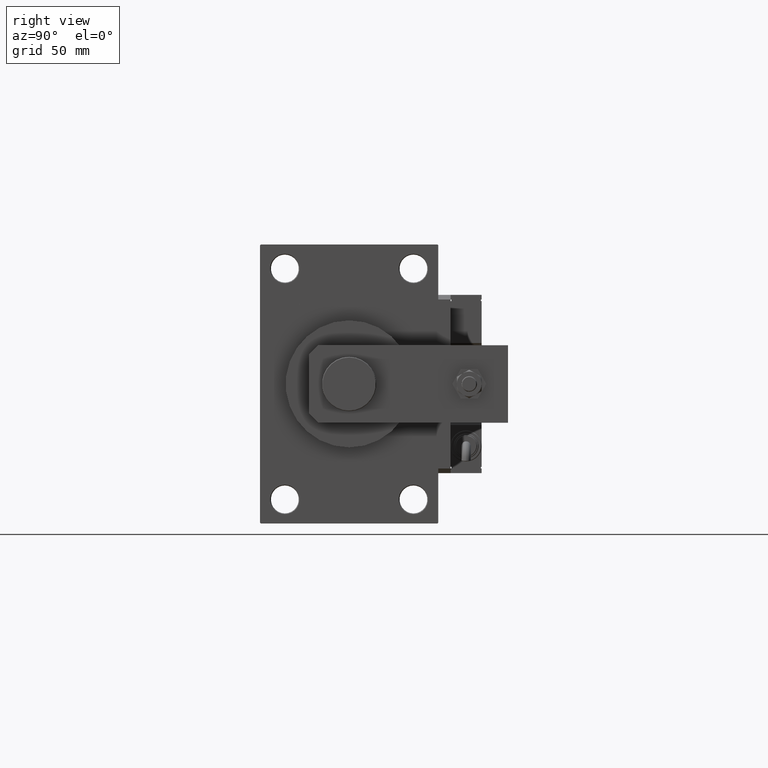
[diagram: clean part render]
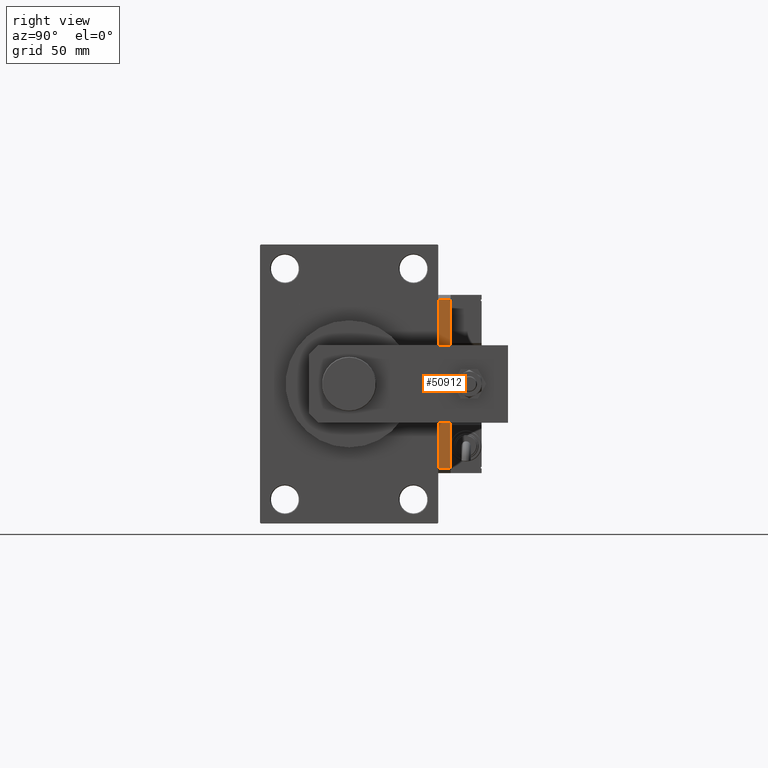
[diagram: same view with one face highlighted and labeled with its STEP entity id]
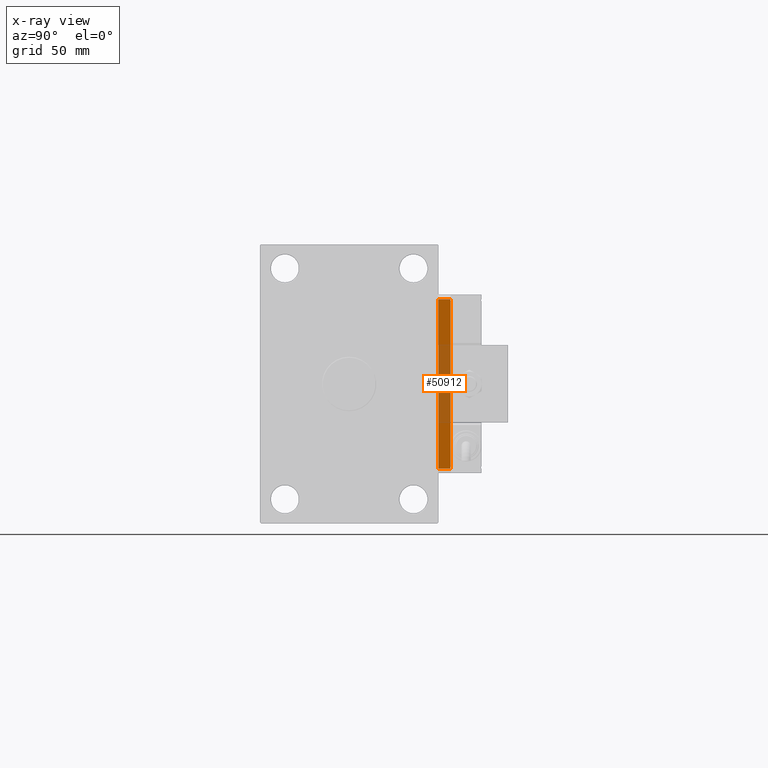
[diagram: x-ray of the same camera — body ghosted, the highlighted face saturated]
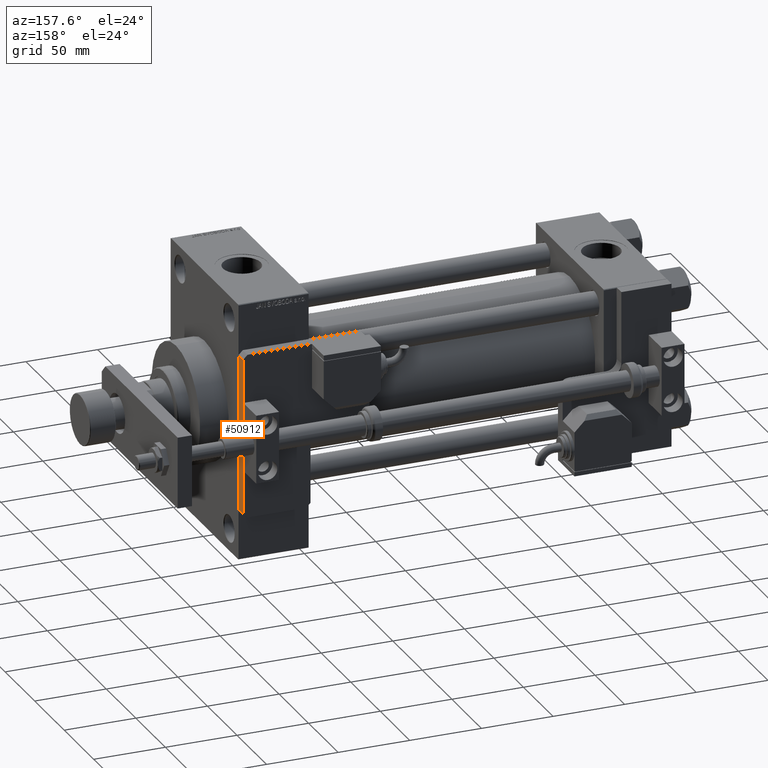
[diagram: same view with one face highlighted and labeled with its STEP entity id]
A machine part, right view. The second image highlights one B-rep face of the part: STEP entity #50912.
The next image is the same camera in x-ray: the body ghosted, the highlighted face saturated — about 46% of this face is hidden behind the body in this view.
A second angle (auxiliary view) of the same face is appended — the face is thin or edge-on in the first view.
In plain terms, the highlighted planar face has unit normal (-1, -0, 0).
Its self-contained STEP definition (entity closure, byte-faithful):
#331 = ORIENTED_EDGE ( 'NONE', *, *, #52463, .T. ) ;
#1472 = CARTESIAN_POINT ( 'NONE',  ( 0.000000000000000000, 0.000000000000000000, 0.000000000000000000 ) ) ;
#5356 = CARTESIAN_POINT ( 'NONE',  ( 111.9999999999999858, 0.000000000000000000, 8.000000000000000000 ) ) ;
#6840 = VERTEX_POINT ( 'NONE', #16725 ) ;
#7622 = DIRECTION ( 'NONE',  ( 1.000000000000000000, 0.000000000000000000, 0.000000000000000000 ) ) ;
#8635 = DIRECTION ( 'NONE',  ( 0.000000000000000000, 0.000000000000000000, 1.000000000000000000 ) ) ;
#10555 = PLANE ( 'NONE',  #51389 ) ;
#11089 = VECTOR ( 'NONE', #7622, 1000.000000000000000 ) ;
#14630 = DIRECTION ( 'NONE',  ( 0.000000000000000000, -0.000000000000000000, 1.000000000000000000 ) ) ;
#16578 = LINE ( 'NONE', #49535, #11089 ) ;
#16725 = CARTESIAN_POINT ( 'NONE',  ( 111.9999999999999858, 0.000000000000000000, 0.000000000000000000 ) ) ;
#17919 = VECTOR ( 'NONE', #18815, 1000.000000000000000 ) ;
#18145 = ORIENTED_EDGE ( 'NONE', *, *, #43740, .F. ) ;
#18815 = DIRECTION ( 'NONE',  ( 0.000000000000000000, 0.000000000000000000, -1.000000000000000000 ) ) ;
#24246 = ORIENTED_EDGE ( 'NONE', *, *, #46679, .T. ) ;
#25960 = ORIENTED_EDGE ( 'NONE', *, *, #38052, .T. ) ;
#29649 = CARTESIAN_POINT ( 'NONE',  ( 2.999999999999975131, 0.000000000000000000, 8.000000000000000000 ) ) ;
#29862 = LINE ( 'NONE', #5356, #32294 ) ;
#31514 = FACE_OUTER_BOUND ( 'NONE', #43771, .T. ) ;
#32294 = VECTOR ( 'NONE', #8635, 1000.000000000000000 ) ;
#32915 = VECTOR ( 'NONE', #38236, 1000.000000000000000 ) ;
#35048 = CARTESIAN_POINT ( 'NONE',  ( 0.000000000000000000, 0.000000000000000000, 8.000000000000000000 ) ) ;
#35373 = VERTEX_POINT ( 'NONE', #29649 ) ;
#37959 = CARTESIAN_POINT ( 'NONE',  ( 2.999999999999975131, 0.000000000000000000, 0.000000000000000000 ) ) ;
#38052 = EDGE_CURVE ( 'NONE', #35373, #52791, #38405, .T. ) ;
#38236 = DIRECTION ( 'NONE',  ( 1.000000000000000000, 0.000000000000000000, 0.000000000000000000 ) ) ;
#38405 = LINE ( 'NONE', #39484, #17919 ) ;
#39484 = CARTESIAN_POINT ( 'NONE',  ( 2.999999999999975131, 0.000000000000000000, 8.000000000000000000 ) ) ;
#41834 = VERTEX_POINT ( 'NONE', #50495 ) ;
#43740 = EDGE_CURVE ( 'NONE', #35373, #41834, #16578, .T. ) ;
#43771 = EDGE_LOOP ( 'NONE', ( #24246, #331, #18145, #25960 ) ) ;
#46679 = EDGE_CURVE ( 'NONE', #52791, #6840, #46954, .T. ) ;
#46954 = LINE ( 'NONE', #1472, #32915 ) ;
#49535 = CARTESIAN_POINT ( 'NONE',  ( 0.000000000000000000, 0.000000000000000000, 8.000000000000000000 ) ) ;
#50495 = CARTESIAN_POINT ( 'NONE',  ( 111.9999999999999858, 0.000000000000000000, 8.000000000000000000 ) ) ;
#50912 = ADVANCED_FACE ( 'NONE', ( #31514 ), #10555, .F. ) ;
#51130 = DIRECTION ( 'NONE',  ( 0.000000000000000000, 1.000000000000000000, 0.000000000000000000 ) ) ;
#51389 = AXIS2_PLACEMENT_3D ( 'NONE', #35048, #51130, #14630 ) ;
#52463 = EDGE_CURVE ( 'NONE', #6840, #41834, #29862, .T. ) ;
#52791 = VERTEX_POINT ( 'NONE', #37959 ) ;